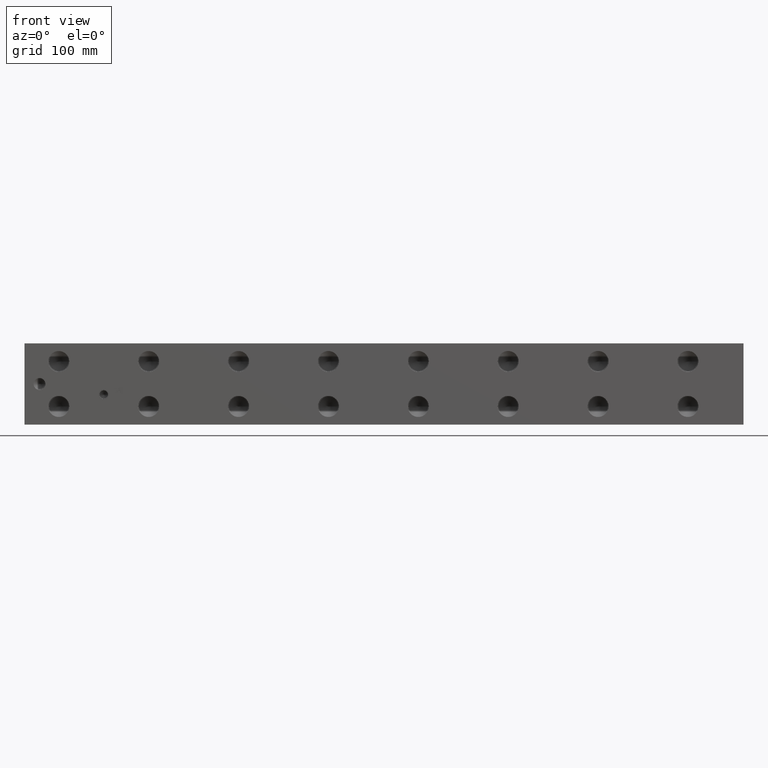
[diagram: clean part render]
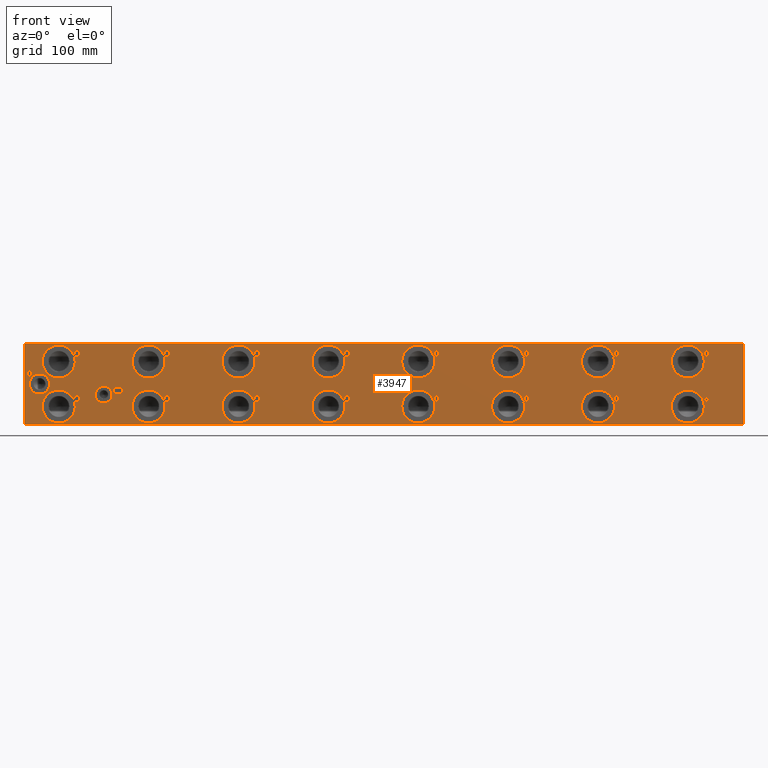
[diagram: same view with one face highlighted and labeled with its STEP entity id]
A machine part, front view. The second image highlights one B-rep face of the part: STEP entity #3947.
In plain terms, the highlighted planar face has unit normal (0, -1, 0).
Its self-contained STEP definition (entity closure, byte-faithful):
#2637=CARTESIAN_POINT('',(1008.0848330638274,0.0,35.610799999999998));
#2638=VERTEX_POINT('',#2637);
#2645=CARTESIAN_POINT('',(1008.126,0.0,35.610799999999998));
#2646=VERTEX_POINT('',#2645);
#2647=CARTESIAN_POINT('',(1008.126,0.0,35.610799999999998));
#2648=DIRECTION('',(-1.0,0.0,0.0));
#2649=VECTOR('',#2648,0.041166936172544);
#2650=LINE('',#2647,#2649);
#2651=EDGE_CURVE('',#2646,#2638,#2650,.T.);
#2852=CARTESIAN_POINT('',(1008.126,0.0,35.732915382781314));
#2853=VERTEX_POINT('',#2852);
#2860=CARTESIAN_POINT('',(1008.0848330638274,0.0,35.610799999999983));
#2861=DIRECTION('',(0.31945116667475,0.0,0.947602739606709));
#2862=VECTOR('',#2861,0.128867697060478);
#2863=LINE('',#2860,#2862);
#2864=EDGE_CURVE('',#2638,#2853,#2863,.T.);
#2898=CARTESIAN_POINT('',(0.0,0.0,0.0));
#2899=DIRECTION('',(0.0,-1.0,0.0));
#2900=DIRECTION('',(1.0,0.0,0.0));
#2901=AXIS2_PLACEMENT_3D('',#2898,#2899,#2900);
#2902=PLANE('',#2901);
#2903=CARTESIAN_POINT('',(0.0,0.0,0.0));
#2904=VERTEX_POINT('',#2903);
#2905=CARTESIAN_POINT('',(1066.8000000000002,0.0,0.0));
#2906=VERTEX_POINT('',#2905);
#2907=CARTESIAN_POINT('',(0.0,0.0,0.0));
#2908=DIRECTION('',(1.0,0.0,0.0));
#2909=VECTOR('',#2908,1066.8000000000002);
#2910=LINE('',#2907,#2909);
#2911=EDGE_CURVE('',#2904,#2906,#2910,.T.);
#2912=ORIENTED_EDGE('',*,*,#2911,.T.);
#2913=CARTESIAN_POINT('',(1066.8000000000002,0.0,120.65000000000001));
#2914=VERTEX_POINT('',#2913);
#2915=CARTESIAN_POINT('',(1066.8000000000002,0.0,0.0));
#2916=DIRECTION('',(0.0,0.0,1.0));
#2917=VECTOR('',#2916,120.65000000000001);
#2918=LINE('',#2915,#2917);
#2919=EDGE_CURVE('',#2906,#2914,#2918,.T.);
#2920=ORIENTED_EDGE('',*,*,#2919,.T.);
#2921=CARTESIAN_POINT('',(0.0,0.0,120.65000000000001));
#2922=VERTEX_POINT('',#2921);
#2923=CARTESIAN_POINT('',(0.0,0.0,120.65000000000001));
#2924=DIRECTION('',(1.0,0.0,0.0));
#2925=VECTOR('',#2924,1066.8000000000002);
#2926=LINE('',#2923,#2925);
#2927=EDGE_CURVE('',#2922,#2914,#2926,.T.);
#2928=ORIENTED_EDGE('',*,*,#2927,.F.);
#2929=CARTESIAN_POINT('',(0.0,0.0,0.0));
#2930=DIRECTION('',(0.0,0.0,1.0));
#2931=VECTOR('',#2930,120.65000000000001);
#2932=LINE('',#2929,#2931);
#2933=EDGE_CURVE('',#2904,#2922,#2932,.T.);
#2934=ORIENTED_EDGE('',*,*,#2933,.F.);
#2935=EDGE_LOOP('',(#2912,#2920,#2928,#2934));
#2936=FACE_OUTER_BOUND('',#2935,.T.);
#2937=CARTESIAN_POINT('',(874.77599999999995,0.0,35.623500000000007));
#2938=VERTEX_POINT('',#2937);
#2939=CARTESIAN_POINT('',(874.7348330638273,0.0,35.623500000000007));
#2940=VERTEX_POINT('',#2939);
#2941=CARTESIAN_POINT('',(874.77599999999995,0.0,35.623500000000007));
#2942=DIRECTION('',(-1.0,0.0,0.0));
#2943=VECTOR('',#2942,0.041166936172658);
#2944=LINE('',#2941,#2943);
#2945=EDGE_CURVE('',#2938,#2940,#2944,.T.);
#2946=ORIENTED_EDGE('',*,*,#2945,.T.);
#2947=CARTESIAN_POINT('',(874.77599999999995,0.0,35.745615382781317));
#2948=VERTEX_POINT('',#2947);
#2949=CARTESIAN_POINT('',(874.7348330638273,0.0,35.623499999999979));
#2950=DIRECTION('',(0.319451166674683,0.0,0.947602739606732));
#2951=VECTOR('',#2950,0.128867697060505);
#2952=LINE('',#2949,#2951);
#2953=EDGE_CURVE('',#2940,#2948,#2952,.T.);
#2954=ORIENTED_EDGE('',*,*,#2953,.T.);
#2955=CARTESIAN_POINT('',(874.77599999999995,0.0,43.719749999999998));
#2956=VERTEX_POINT('',#2955);
#2957=CARTESIAN_POINT('',(874.77599999999995,0.0,35.745615382781317));
#2958=DIRECTION('',(0.0,0.0,1.0));
#2959=VECTOR('',#2958,7.974134617218681);
#2960=LINE('',#2957,#2959);
#2961=EDGE_CURVE('',#2948,#2956,#2960,.T.);
#2962=ORIENTED_EDGE('',*,*,#2961,.T.);
#2963=CARTESIAN_POINT('',(881.88800000000015,0.0,43.719749999999998));
#2964=VERTEX_POINT('',#2963);
#2965=CARTESIAN_POINT('',(874.77599999999995,0.0,43.719749999999998));
#2966=DIRECTION('',(1.0,0.0,0.0));
#2967=VECTOR('',#2966,7.112000000000194);
#2968=LINE('',#2965,#2967);
#2969=EDGE_CURVE('',#2956,#2964,#2968,.T.);
#2970=ORIENTED_EDGE('',*,*,#2969,.T.);
#2971=CARTESIAN_POINT('',(881.88800000000015,0.0,34.194749999999999));
#2972=VERTEX_POINT('',#2971);
#2973=CARTESIAN_POINT('',(881.88800000000015,0.0,43.719749999999998));
#2974=DIRECTION('',(0.0,0.0,-1.0));
#2975=VECTOR('',#2974,9.524999999999999);
#2976=LINE('',#2973,#2975);
#2977=EDGE_CURVE('',#2964,#2972,#2976,.T.);
#2978=ORIENTED_EDGE('',*,*,#2977,.T.);
#2979=CARTESIAN_POINT('',(874.77599999999995,0.0,34.194749999999999));
#2980=VERTEX_POINT('',#2979);
#2981=CARTESIAN_POINT('',(881.88800000000015,0.0,34.194749999999999));
#2982=DIRECTION('',(-1.0,0.0,0.0));
#2983=VECTOR('',#2982,7.112000000000194);
#2984=LINE('',#2981,#2983);
#2985=EDGE_CURVE('',#2972,#2980,#2984,.T.);
#2986=ORIENTED_EDGE('',*,*,#2985,.T.);
#2987=CARTESIAN_POINT('',(874.77599999999995,0.0,34.194749999999999));
#2988=DIRECTION('',(0.0,0.0,1.0));
#2989=VECTOR('',#2988,1.428750000000001);
#2990=LINE('',#2987,#2989);
#2991=EDGE_CURVE('',#2980,#2938,#2990,.T.);
#2992=ORIENTED_EDGE('',*,*,#2991,.T.);
#2993=EDGE_LOOP('',(#2946,#2954,#2962,#2970,#2978,#2986,#2992));
#2994=FACE_BOUND('',#2993,.T.);
#2995=CARTESIAN_POINT('',(608.07600000000002,0.0,35.623500000000007));
#2996=VERTEX_POINT('',#2995);
#2997=CARTESIAN_POINT('',(608.03483306382748,0.0,35.623500000000007));
#2998=VERTEX_POINT('',#2997);
#2999=CARTESIAN_POINT('',(608.07600000000002,0.0,35.623500000000007));
#3000=DIRECTION('',(-1.0,0.0,0.0));
#3001=VECTOR('',#3000,0.041166936172658);
#3002=LINE('',#2999,#3001);
#3003=EDGE_CURVE('',#2996,#2998,#3002,.T.);
#3004=ORIENTED_EDGE('',*,*,#3003,.T.);
#3005=CARTESIAN_POINT('',(608.07600000000002,0.0,35.745615382781317));
#3006=VERTEX_POINT('',#3005);
#3007=CARTESIAN_POINT('',(608.03483306382748,0.0,35.623499999999979));
#3008=DIRECTION('',(0.319451166673925,0.0,0.947602739606988));
#3009=VECTOR('',#3008,0.128867697060456);
#3010=LINE('',#3007,#3009);
#3011=EDGE_CURVE('',#2998,#3006,#3010,.T.);
#3012=ORIENTED_EDGE('',*,*,#3011,.T.);
#3013=CARTESIAN_POINT('',(608.07600000000002,0.0,43.719749999999998));
#3014=VERTEX_POINT('',#3013);
#3015=CARTESIAN_POINT('',(608.07600000000002,0.0,35.74561538278131));
#3016=DIRECTION('',(0.0,0.0,1.0));
#3017=VECTOR('',#3016,7.974134617218688);
#3018=LINE('',#3015,#3017);
#3019=EDGE_CURVE('',#3006,#3014,#3018,.T.);
#3020=ORIENTED_EDGE('',*,*,#3019,.T.);
#3021=CARTESIAN_POINT('',(615.18799999999999,0.0,43.719749999999998));
#3022=VERTEX_POINT('',#3021);
#3023=CARTESIAN_POINT('',(608.07600000000002,0.0,43.719749999999998));
#3024=DIRECTION('',(1.0,0.0,0.0));
#3025=VECTOR('',#3024,7.111999999999966);
#3026=LINE('',#3023,#3025);
#3027=EDGE_CURVE('',#3014,#3022,#3026,.T.);
#3028=ORIENTED_EDGE('',*,*,#3027,.T.);
#3029=CARTESIAN_POINT('',(615.18799999999999,0.0,34.194749999999999));
#3030=VERTEX_POINT('',#3029);
#3031=CARTESIAN_POINT('',(615.18799999999999,0.0,43.719749999999998));
#3032=DIRECTION('',(0.0,0.0,-1.0));
#3033=VECTOR('',#3032,9.524999999999999);
#3034=LINE('',#3031,#3033);
#3035=EDGE_CURVE('',#3022,#3030,#3034,.T.);
#3036=ORIENTED_EDGE('',*,*,#3035,.T.);
#3037=CARTESIAN_POINT('',(608.07600000000002,0.0,34.194749999999999));
#3038=VERTEX_POINT('',#3037);
#3039=CARTESIAN_POINT('',(615.18799999999999,0.0,34.194749999999999));
#3040=DIRECTION('',(-1.0,0.0,0.0));
#3041=VECTOR('',#3040,7.111999999999966);
#3042=LINE('',#3039,#3041);
#3043=EDGE_CURVE('',#3030,#3038,#3042,.T.);
#3044=ORIENTED_EDGE('',*,*,#3043,.T.);
#3045=CARTESIAN_POINT('',(608.07600000000002,0.0,34.194749999999999));
#3046=DIRECTION('',(0.0,0.0,1.0));
#3047=VECTOR('',#3046,1.428750000000001);
#3048=LINE('',#3045,#3047);
#3049=EDGE_CURVE('',#3038,#2996,#3048,.T.);
#3050=ORIENTED_EDGE('',*,*,#3049,.T.);
#3051=EDGE_LOOP('',(#3004,#3012,#3020,#3028,#3036,#3044,#3050));
#3052=FACE_BOUND('',#3051,.T.);
#3053=CARTESIAN_POINT('',(341.37599999999998,0.0,35.623500000000007));
#3054=VERTEX_POINT('',#3053);
#3055=CARTESIAN_POINT('',(341.33483306382738,0.0,35.623500000000007));
#3056=VERTEX_POINT('',#3055);
#3057=CARTESIAN_POINT('',(341.37599999999998,0.0,35.623500000000007));
#3058=DIRECTION('',(-1.0,0.0,0.0));
#3059=VECTOR('',#3058,0.041166936172601);
#3060=LINE('',#3057,#3059);
#3061=EDGE_CURVE('',#3054,#3056,#3060,.T.);
#3062=ORIENTED_EDGE('',*,*,#3061,.T.);
#3063=CARTESIAN_POINT('',(341.37599999999998,0.0,35.745615382781317));
#3064=VERTEX_POINT('',#3063);
#3065=CARTESIAN_POINT('',(341.33483306382738,0.0,35.623499999999993));
#3066=DIRECTION('',(0.319451166674387,0.0,0.947602739606832));
#3067=VECTOR('',#3066,0.128867697060447);
#3068=LINE('',#3065,#3067);
#3069=EDGE_CURVE('',#3056,#3064,#3068,.T.);
#3070=ORIENTED_EDGE('',*,*,#3069,.T.);
#3071=CARTESIAN_POINT('',(341.37599999999998,0.0,43.719749999999998));
#3072=VERTEX_POINT('',#3071);
#3073=CARTESIAN_POINT('',(341.37599999999998,0.0,35.74561538278131));
#3074=DIRECTION('',(0.0,0.0,1.0));
#3075=VECTOR('',#3074,7.974134617218688);
#3076=LINE('',#3073,#3075);
#3077=EDGE_CURVE('',#3064,#3072,#3076,.T.);
#3078=ORIENTED_EDGE('',*,*,#3077,.T.);
#3079=CARTESIAN_POINT('',(348.48800000000006,0.0,43.719749999999998));
#3080=VERTEX_POINT('',#3079);
#3081=CARTESIAN_POINT('',(341.37599999999998,0.0,43.719749999999998));
#3082=DIRECTION('',(1.0,0.0,0.0));
#3083=VECTOR('',#3082,7.11200000000008);
#3084=LINE('',#3081,#3083);
#3085=EDGE_CURVE('',#3072,#3080,#3084,.T.);
#3086=ORIENTED_EDGE('',*,*,#3085,.T.);
#3087=CARTESIAN_POINT('',(348.48800000000006,0.0,34.194749999999999));
#3088=VERTEX_POINT('',#3087);
#3089=CARTESIAN_POINT('',(348.48800000000006,0.0,43.719749999999998));
#3090=DIRECTION('',(0.0,0.0,-1.0));
#3091=VECTOR('',#3090,9.524999999999999);
#3092=LINE('',#3089,#3091);
#3093=EDGE_CURVE('',#3080,#3088,#3092,.T.);
#3094=ORIENTED_EDGE('',*,*,#3093,.T.);
#3095=CARTESIAN_POINT('',(341.37599999999998,0.0,34.194749999999999));
#3096=VERTEX_POINT('',#3095);
#3097=CARTESIAN_POINT('',(348.48800000000006,0.0,34.194749999999999));
#3098=DIRECTION('',(-1.0,0.0,0.0));
#3099=VECTOR('',#3098,7.11200000000008);
#3100=LINE('',#3097,#3099);
#3101=EDGE_CURVE('',#3088,#3096,#3100,.T.);
#3102=ORIENTED_EDGE('',*,*,#3101,.T.);
#3103=CARTESIAN_POINT('',(341.37599999999998,0.0,34.194749999999999));
#3104=DIRECTION('',(0.0,0.0,1.0));
#3105=VECTOR('',#3104,1.428750000000001);
#3106=LINE('',#3103,#3105);
#3107=EDGE_CURVE('',#3096,#3054,#3106,.T.);
#3108=ORIENTED_EDGE('',*,*,#3107,.T.);
#3109=EDGE_LOOP('',(#3062,#3070,#3078,#3086,#3094,#3102,#3108));
#3110=FACE_BOUND('',#3109,.T.);
#3111=CARTESIAN_POINT('',(74.676000000000016,0.0,35.623500000000007));
#3112=VERTEX_POINT('',#3111);
#3113=CARTESIAN_POINT('',(74.634833063827358,0.0,35.623500000000007));
#3114=VERTEX_POINT('',#3113);
#3115=CARTESIAN_POINT('',(74.676000000000016,0.0,35.623500000000007));
#3116=DIRECTION('',(-1.0,0.0,0.0));
#3117=VECTOR('',#3116,0.041166936172658);
#3118=LINE('',#3115,#3117);
#3119=EDGE_CURVE('',#3112,#3114,#3118,.T.);
#3120=ORIENTED_EDGE('',*,*,#3119,.T.);
#3121=CARTESIAN_POINT('',(74.676000000000016,0.0,35.745615382781395));
#3122=VERTEX_POINT('',#3121);
#3123=CARTESIAN_POINT('',(74.634833063827358,0.0,35.623500000000007));
#3124=DIRECTION('',(0.319451166674583,0.0,0.947602739606766));
#3125=VECTOR('',#3124,0.128867697060546);
#3126=LINE('',#3123,#3125);
#3127=EDGE_CURVE('',#3114,#3122,#3126,.T.);
#3128=ORIENTED_EDGE('',*,*,#3127,.T.);
#3129=CARTESIAN_POINT('',(74.676000000000016,0.0,43.719749999999998));
#3130=VERTEX_POINT('',#3129);
#3131=CARTESIAN_POINT('',(74.676000000000016,0.0,35.745615382781395));
#3132=DIRECTION('',(0.0,0.0,1.0));
#3133=VECTOR('',#3132,7.974134617218603);
#3134=LINE('',#3131,#3133);
#3135=EDGE_CURVE('',#3122,#3130,#3134,.T.);
#3136=ORIENTED_EDGE('',*,*,#3135,.T.);
#3137=CARTESIAN_POINT('',(81.788000000000011,0.0,43.719749999999998));
#3138=VERTEX_POINT('',#3137);
#3139=CARTESIAN_POINT('',(74.676000000000016,0.0,43.719749999999998));
#3140=DIRECTION('',(1.0,0.0,0.0));
#3141=VECTOR('',#3140,7.111999999999995);
#3142=LINE('',#3139,#3141);
#3143=EDGE_CURVE('',#3130,#3138,#3142,.T.);
#3144=ORIENTED_EDGE('',*,*,#3143,.T.);
#3145=CARTESIAN_POINT('',(81.788000000000011,0.0,34.194749999999999));
#3146=VERTEX_POINT('',#3145);
#3147=CARTESIAN_POINT('',(81.788000000000011,0.0,43.719749999999998));
#3148=DIRECTION('',(0.0,0.0,-1.0));
#3149=VECTOR('',#3148,9.524999999999999);
#3150=LINE('',#3147,#3149);
#3151=EDGE_CURVE('',#3138,#3146,#3150,.T.);
#3152=ORIENTED_EDGE('',*,*,#3151,.T.);
#3153=CARTESIAN_POINT('',(74.676000000000016,0.0,34.194749999999999));
#3154=VERTEX_POINT('',#3153);
#3155=CARTESIAN_POINT('',(81.788000000000011,0.0,34.194749999999999));
#3156=DIRECTION('',(-1.0,0.0,0.0));
#3157=VECTOR('',#3156,7.111999999999995);
#3158=LINE('',#3155,#3157);
#3159=EDGE_CURVE('',#3146,#3154,#3158,.T.);
#3160=ORIENTED_EDGE('',*,*,#3159,.T.);
#3161=CARTESIAN_POINT('',(74.676000000000016,0.0,34.194749999999999));
#3162=DIRECTION('',(0.0,0.0,1.0));
#3163=VECTOR('',#3162,1.428750000000001);
#3164=LINE('',#3161,#3163);
#3165=EDGE_CURVE('',#3154,#3112,#3164,.T.);
#3166=ORIENTED_EDGE('',*,*,#3165,.T.);
#3167=EDGE_LOOP('',(#3120,#3128,#3136,#3144,#3152,#3160,#3166));
#3168=FACE_BOUND('',#3167,.T.);
#3169=CARTESIAN_POINT('',(215.13800000000003,0.0,110.39475000000002));
#3170=VERTEX_POINT('',#3169);
#3171=CARTESIAN_POINT('',(215.13800000000003,0.0,100.86975000000001));
#3172=VERTEX_POINT('',#3171);
#3173=CARTESIAN_POINT('',(215.13800000000003,0.0,110.39475000000002));
#3174=DIRECTION('',(0.0,0.0,-1.0));
#3175=VECTOR('',#3174,9.525000000000006);
#3176=LINE('',#3173,#3175);
#3177=EDGE_CURVE('',#3170,#3172,#3176,.T.);
#3178=ORIENTED_EDGE('',*,*,#3177,.T.);
#3179=CARTESIAN_POINT('',(208.02600000000001,0.0,100.86975000000001));
#3180=VERTEX_POINT('',#3179);
#3181=CARTESIAN_POINT('',(215.13800000000003,0.0,100.86975000000001));
#3182=DIRECTION('',(-1.0,0.0,0.0));
#3183=VECTOR('',#3182,7.112000000000023);
#3184=LINE('',#3181,#3183);
#3185=EDGE_CURVE('',#3172,#3180,#3184,.T.);
#3186=ORIENTED_EDGE('',*,*,#3185,.T.);
#3187=CARTESIAN_POINT('',(208.02600000000001,0.0,110.39475000000002));
#3188=VERTEX_POINT('',#3187);
#3189=CARTESIAN_POINT('',(208.02600000000001,0.0,100.86975000000001));
#3190=DIRECTION('',(0.0,0.0,1.0));
#3191=VECTOR('',#3190,9.525000000000006);
#3192=LINE('',#3189,#3191);
#3193=EDGE_CURVE('',#3180,#3188,#3192,.T.);
#3194=ORIENTED_EDGE('',*,*,#3193,.T.);
#3195=CARTESIAN_POINT('',(208.02600000000001,0.0,110.39475000000002));
#3196=DIRECTION('',(1.0,0.0,0.0));
#3197=VECTOR('',#3196,7.112000000000023);
#3198=LINE('',#3195,#3197);
#3199=EDGE_CURVE('',#3188,#3170,#3198,.T.);
#3200=ORIENTED_EDGE('',*,*,#3199,.T.);
#3201=EDGE_LOOP('',(#3178,#3186,#3194,#3200));
#3202=FACE_BOUND('',#3201,.T.);
#3203=CARTESIAN_POINT('',(81.788000000000011,0.0,110.39475000000002));
#3204=VERTEX_POINT('',#3203);
#3205=CARTESIAN_POINT('',(81.788000000000011,0.0,100.86975000000001));
#3206=VERTEX_POINT('',#3205);
#3207=CARTESIAN_POINT('',(81.788000000000011,0.0,110.39475000000002));
#3208=DIRECTION('',(0.0,0.0,-1.0));
#3209=VECTOR('',#3208,9.525000000000006);
#3210=LINE('',#3207,#3209);
#3211=EDGE_CURVE('',#3204,#3206,#3210,.T.);
#3212=ORIENTED_EDGE('',*,*,#3211,.T.);
#3213=CARTESIAN_POINT('',(74.676000000000016,0.0,100.86975000000001));
#3214=VERTEX_POINT('',#3213);
#3215=CARTESIAN_POINT('',(81.788000000000011,0.0,100.86975000000001));
#3216=DIRECTION('',(-1.0,0.0,0.0));
#3217=VECTOR('',#3216,7.111999999999995);
#3218=LINE('',#3215,#3217);
#3219=EDGE_CURVE('',#3206,#3214,#3218,.T.);
#3220=ORIENTED_EDGE('',*,*,#3219,.T.);
#3221=CARTESIAN_POINT('',(74.676000000000016,0.0,110.39475000000002));
#3222=VERTEX_POINT('',#3221);
#3223=CARTESIAN_POINT('',(74.676000000000016,0.0,100.86975000000001));
#3224=DIRECTION('',(0.0,0.0,1.0));
#3225=VECTOR('',#3224,9.525000000000006);
#3226=LINE('',#3223,#3225);
#3227=EDGE_CURVE('',#3214,#3222,#3226,.T.);
#3228=ORIENTED_EDGE('',*,*,#3227,.T.);
#3229=CARTESIAN_POINT('',(74.676000000000016,0.0,110.39475000000002));
#3230=DIRECTION('',(1.0,0.0,0.0));
#3231=VECTOR('',#3230,7.111999999999995);
#3232=LINE('',#3229,#3231);
#3233=EDGE_CURVE('',#3222,#3204,#3232,.T.);
#3234=ORIENTED_EDGE('',*,*,#3233,.T.);
#3235=EDGE_LOOP('',(#3212,#3220,#3228,#3234));
#3236=FACE_BOUND('',#3235,.T.);
#3237=CARTESIAN_POINT('',(348.48800000000006,0.0,110.39475000000002));
#3238=VERTEX_POINT('',#3237);
#3239=CARTESIAN_POINT('',(348.48800000000006,0.0,100.86975000000001));
#3240=VERTEX_POINT('',#3239);
#3241=CARTESIAN_POINT('',(348.48800000000006,0.0,110.39475000000002));
#3242=DIRECTION('',(0.0,0.0,-1.0));
#3243=VECTOR('',#3242,9.525000000000006);
#3244=LINE('',#3241,#3243);
#3245=EDGE_CURVE('',#3238,#3240,#3244,.T.);
#3246=ORIENTED_EDGE('',*,*,#3245,.T.);
#3247=CARTESIAN_POINT('',(341.37599999999998,0.0,100.86975000000001));
#3248=VERTEX_POINT('',#3247);
#3249=CARTESIAN_POINT('',(348.48800000000006,0.0,100.86975000000001));
#3250=DIRECTION('',(-1.0,0.0,0.0));
#3251=VECTOR('',#3250,7.11200000000008);
#3252=LINE('',#3249,#3251);
#3253=EDGE_CURVE('',#3240,#3248,#3252,.T.);
#3254=ORIENTED_EDGE('',*,*,#3253,.T.);
#3255=CARTESIAN_POINT('',(341.37599999999998,0.0,110.39475000000002));
#3256=VERTEX_POINT('',#3255);
#3257=CARTESIAN_POINT('',(341.37599999999998,0.0,100.86975000000001));
#3258=DIRECTION('',(0.0,0.0,1.0));
#3259=VECTOR('',#3258,9.525000000000006);
#3260=LINE('',#3257,#3259);
#3261=EDGE_CURVE('',#3248,#3256,#3260,.T.);
#3262=ORIENTED_EDGE('',*,*,#3261,.T.);
#3263=CARTESIAN_POINT('',(341.37599999999998,0.0,110.39475000000002));
#3264=DIRECTION('',(1.0,0.0,0.0));
#3265=VECTOR('',#3264,7.11200000000008);
#3266=LINE('',#3263,#3265);
#3267=EDGE_CURVE('',#3256,#3238,#3266,.T.);
#3268=ORIENTED_EDGE('',*,*,#3267,.T.);
#3269=EDGE_LOOP('',(#3246,#3254,#3262,#3268));
#3270=FACE_BOUND('',#3269,.T.);
#3271=CARTESIAN_POINT('',(481.83800000000008,0.0,110.42015000000001));
#3272=VERTEX_POINT('',#3271);
#3273=CARTESIAN_POINT('',(481.83800000000008,0.0,100.89515));
#3274=VERTEX_POINT('',#3273);
#3275=CARTESIAN_POINT('',(481.83800000000008,0.0,110.42015000000001));
#3276=DIRECTION('',(0.0,0.0,-1.0));
#3277=VECTOR('',#3276,9.525000000000006);
#3278=LINE('',#3275,#3277);
#3279=EDGE_CURVE('',#3272,#3274,#3278,.T.);
#3280=ORIENTED_EDGE('',*,*,#3279,.T.);
#3281=CARTESIAN_POINT('',(474.726,0.0,100.89515));
#3282=VERTEX_POINT('',#3281);
#3283=CARTESIAN_POINT('',(481.83800000000008,0.0,100.89515));
#3284=DIRECTION('',(-1.0,0.0,0.0));
#3285=VECTOR('',#3284,7.11200000000008);
#3286=LINE('',#3283,#3285);
#3287=EDGE_CURVE('',#3274,#3282,#3286,.T.);
#3288=ORIENTED_EDGE('',*,*,#3287,.T.);
#3289=CARTESIAN_POINT('',(474.726,0.0,110.42015000000001));
#3290=VERTEX_POINT('',#3289);
#3291=CARTESIAN_POINT('',(474.726,0.0,100.89515));
#3292=DIRECTION('',(0.0,0.0,1.0));
#3293=VECTOR('',#3292,9.525000000000006);
#3294=LINE('',#3291,#3293);
#3295=EDGE_CURVE('',#3282,#3290,#3294,.T.);
#3296=ORIENTED_EDGE('',*,*,#3295,.T.);
#3297=CARTESIAN_POINT('',(474.726,0.0,110.42015000000001));
#3298=DIRECTION('',(1.0,0.0,0.0));
#3299=VECTOR('',#3298,7.11200000000008);
#3300=LINE('',#3297,#3299);
#3301=EDGE_CURVE('',#3290,#3272,#3300,.T.);
#3302=ORIENTED_EDGE('',*,*,#3301,.T.);
#3303=EDGE_LOOP('',(#3280,#3288,#3296,#3302));
#3304=FACE_BOUND('',#3303,.T.);
#3305=CARTESIAN_POINT('',(615.18799999999999,0.0,110.44555000000001));
#3306=VERTEX_POINT('',#3305);
#3307=CARTESIAN_POINT('',(615.18799999999999,0.0,100.92055000000002));
#3308=VERTEX_POINT('',#3307);
#3309=CARTESIAN_POINT('',(615.18799999999999,0.0,110.44555000000001));
#3310=DIRECTION('',(0.0,0.0,-1.0));
#3311=VECTOR('',#3310,9.524999999999992);
#3312=LINE('',#3309,#3311);
#3313=EDGE_CURVE('',#3306,#3308,#3312,.T.);
#3314=ORIENTED_EDGE('',*,*,#3313,.T.);
#3315=CARTESIAN_POINT('',(608.07600000000002,0.0,100.92055000000002));
#3316=VERTEX_POINT('',#3315);
#3317=CARTESIAN_POINT('',(615.18799999999999,0.0,100.92055000000002));
#3318=DIRECTION('',(-1.0,0.0,0.0));
#3319=VECTOR('',#3318,7.111999999999966);
#3320=LINE('',#3317,#3319);
#3321=EDGE_CURVE('',#3308,#3316,#3320,.T.);
#3322=ORIENTED_EDGE('',*,*,#3321,.T.);
#3323=CARTESIAN_POINT('',(608.07600000000002,0.0,110.44555000000001));
#3324=VERTEX_POINT('',#3323);
#3325=CARTESIAN_POINT('',(608.07600000000002,0.0,100.92055000000002));
#3326=DIRECTION('',(0.0,0.0,1.0));
#3327=VECTOR('',#3326,9.524999999999992);
#3328=LINE('',#3325,#3327);
#3329=EDGE_CURVE('',#3316,#3324,#3328,.T.);
#3330=ORIENTED_EDGE('',*,*,#3329,.T.);
#3331=CARTESIAN_POINT('',(608.07600000000002,0.0,110.44555000000001));
#3332=DIRECTION('',(1.0,0.0,0.0));
#3333=VECTOR('',#3332,7.111999999999966);
#3334=LINE('',#3331,#3333);
#3335=EDGE_CURVE('',#3324,#3306,#3334,.T.);
#3336=ORIENTED_EDGE('',*,*,#3335,.T.);
#3337=EDGE_LOOP('',(#3314,#3322,#3330,#3336));
#3338=FACE_BOUND('',#3337,.T.);
#3339=CARTESIAN_POINT('',(748.53800000000001,0.0,110.47095));
#3340=VERTEX_POINT('',#3339);
#3341=CARTESIAN_POINT('',(748.53800000000001,0.0,100.94595));
#3342=VERTEX_POINT('',#3341);
#3343=CARTESIAN_POINT('',(748.53800000000001,0.0,110.47095));
#3344=DIRECTION('',(0.0,0.0,-1.0));
#3345=VECTOR('',#3344,9.525000000000006);
#3346=LINE('',#3343,#3345);
#3347=EDGE_CURVE('',#3340,#3342,#3346,.T.);
#3348=ORIENTED_EDGE('',*,*,#3347,.T.);
#3349=CARTESIAN_POINT('',(741.42600000000004,0.0,100.94595));
#3350=VERTEX_POINT('',#3349);
#3351=CARTESIAN_POINT('',(748.53800000000001,0.0,100.94595));
#3352=DIRECTION('',(-1.0,0.0,0.0));
#3353=VECTOR('',#3352,7.11200000000008);
#3354=LINE('',#3351,#3353);
#3355=EDGE_CURVE('',#3342,#3350,#3354,.T.);
#3356=ORIENTED_EDGE('',*,*,#3355,.T.);
#3357=CARTESIAN_POINT('',(741.42600000000004,0.0,110.47095));
#3358=VERTEX_POINT('',#3357);
#3359=CARTESIAN_POINT('',(741.42600000000004,0.0,100.94595));
#3360=DIRECTION('',(0.0,0.0,1.0));
#3361=VECTOR('',#3360,9.525000000000006);
#3362=LINE('',#3359,#3361);
#3363=EDGE_CURVE('',#3350,#3358,#3362,.T.);
#3364=ORIENTED_EDGE('',*,*,#3363,.T.);
#3365=CARTESIAN_POINT('',(741.42600000000004,0.0,110.47095));
#3366=DIRECTION('',(1.0,0.0,0.0));
#3367=VECTOR('',#3366,7.111999999999966);
#3368=LINE('',#3365,#3367);
#3369=EDGE_CURVE('',#3358,#3340,#3368,.T.);
#3370=ORIENTED_EDGE('',*,*,#3369,.T.);
#3371=EDGE_LOOP('',(#3348,#3356,#3364,#3370));
#3372=FACE_BOUND('',#3371,.T.);
#3373=CARTESIAN_POINT('',(1015.2380000000001,0.0,110.50905));
#3374=VERTEX_POINT('',#3373);
#3375=CARTESIAN_POINT('',(1015.2380000000001,0.0,100.98405));
#3376=VERTEX_POINT('',#3375);
#3377=CARTESIAN_POINT('',(1015.2380000000001,0.0,110.50905));
#3378=DIRECTION('',(0.0,0.0,-1.0));
#3379=VECTOR('',#3378,9.525000000000006);
#3380=LINE('',#3377,#3379);
#3381=EDGE_CURVE('',#3374,#3376,#3380,.T.);
#3382=ORIENTED_EDGE('',*,*,#3381,.T.);
#3383=CARTESIAN_POINT('',(1008.126,0.0,100.98405));
#3384=VERTEX_POINT('',#3383);
#3385=CARTESIAN_POINT('',(1015.2380000000001,0.0,100.98405));
#3386=DIRECTION('',(-1.0,0.0,0.0));
#3387=VECTOR('',#3386,7.11200000000008);
#3388=LINE('',#3385,#3387);
#3389=EDGE_CURVE('',#3376,#3384,#3388,.T.);
#3390=ORIENTED_EDGE('',*,*,#3389,.T.);
#3391=CARTESIAN_POINT('',(1008.126,0.0,110.50905));
#3392=VERTEX_POINT('',#3391);
#3393=CARTESIAN_POINT('',(1008.126,0.0,100.98405));
#3394=DIRECTION('',(0.0,0.0,1.0));
#3395=VECTOR('',#3394,9.525000000000006);
#3396=LINE('',#3393,#3395);
#3397=EDGE_CURVE('',#3384,#3392,#3396,.T.);
#3398=ORIENTED_EDGE('',*,*,#3397,.T.);
#3399=CARTESIAN_POINT('',(1008.126,0.0,110.50905));
#3400=DIRECTION('',(1.0,0.0,0.0));
#3401=VECTOR('',#3400,7.11200000000008);
#3402=LINE('',#3399,#3401);
#3403=EDGE_CURVE('',#3392,#3374,#3402,.T.);
#3404=ORIENTED_EDGE('',*,*,#3403,.T.);
#3405=EDGE_LOOP('',(#3382,#3390,#3398,#3404));
#3406=FACE_BOUND('',#3405,.T.);
#3407=CARTESIAN_POINT('',(881.88800000000015,0.0,110.49635000000002));
#3408=VERTEX_POINT('',#3407);
#3409=CARTESIAN_POINT('',(881.88800000000015,0.0,100.97135000000002));
#3410=VERTEX_POINT('',#3409);
#3411=CARTESIAN_POINT('',(881.88800000000015,0.0,110.49635000000002));
#3412=DIRECTION('',(0.0,0.0,-1.0));
#3413=VECTOR('',#3412,9.525000000000006);
#3414=LINE('',#3411,#3413);
#3415=EDGE_CURVE('',#3408,#3410,#3414,.T.);
#3416=ORIENTED_EDGE('',*,*,#3415,.T.);
#3417=CARTESIAN_POINT('',(874.77599999999995,0.0,100.97135000000002));
#3418=VERTEX_POINT('',#3417);
#3419=CARTESIAN_POINT('',(881.88800000000015,0.0,100.97135000000002));
#3420=DIRECTION('',(-1.0,0.0,0.0));
#3421=VECTOR('',#3420,7.112000000000194);
#3422=LINE('',#3419,#3421);
#3423=EDGE_CURVE('',#3410,#3418,#3422,.T.);
#3424=ORIENTED_EDGE('',*,*,#3423,.T.);
#3425=CARTESIAN_POINT('',(874.77599999999995,0.0,110.49635000000002));
#3426=VERTEX_POINT('',#3425);
#3427=CARTESIAN_POINT('',(874.77599999999995,0.0,100.97135000000002));
#3428=DIRECTION('',(0.0,0.0,1.0));
#3429=VECTOR('',#3428,9.525000000000006);
#3430=LINE('',#3427,#3429);
#3431=EDGE_CURVE('',#3418,#3426,#3430,.T.);
#3432=ORIENTED_EDGE('',*,*,#3431,.T.);
#3433=CARTESIAN_POINT('',(874.77599999999995,0.0,110.49635000000002));
#3434=DIRECTION('',(1.0,0.0,0.0));
#3435=VECTOR('',#3434,7.112000000000194);
#3436=LINE('',#3433,#3435);
#3437=EDGE_CURVE('',#3426,#3408,#3436,.T.);
#3438=ORIENTED_EDGE('',*,*,#3437,.T.);
#3439=EDGE_LOOP('',(#3416,#3424,#3432,#3438));
#3440=FACE_BOUND('',#3439,.T.);
#3441=CARTESIAN_POINT('',(3.89068719680576,0.0,79.374999904632574));
#3442=VERTEX_POINT('',#3441);
#3443=CARTESIAN_POINT('',(3.937,0.0,79.374999904632574));
#3444=VERTEX_POINT('',#3443);
#3445=CARTESIAN_POINT('',(3.89068719680576,0.0,79.374999904632574));
#3446=DIRECTION('',(1.0,0.0,0.0));
#3447=VECTOR('',#3446,0.046312803194241);
#3448=LINE('',#3445,#3447);
#3449=EDGE_CURVE('',#3442,#3444,#3448,.T.);
#3450=ORIENTED_EDGE('',*,*,#3449,.T.);
#3451=CARTESIAN_POINT('',(3.937,0.0,81.121250000000003));
#3452=VERTEX_POINT('',#3451);
#3453=CARTESIAN_POINT('',(3.937,0.0,79.374999904632574));
#3454=DIRECTION('',(0.0,0.0,1.0));
#3455=VECTOR('',#3454,1.746250095367429);
#3456=LINE('',#3453,#3455);
#3457=EDGE_CURVE('',#3444,#3452,#3456,.T.);
#3458=ORIENTED_EDGE('',*,*,#3457,.T.);
#3459=CARTESIAN_POINT('',(11.048999999999999,0.0,81.121250000000003));
#3460=VERTEX_POINT('',#3459);
#3461=CARTESIAN_POINT('',(3.937,0.0,81.121250000000003));
#3462=DIRECTION('',(1.0,0.0,0.0));
#3463=VECTOR('',#3462,7.112);
#3464=LINE('',#3461,#3463);
#3465=EDGE_CURVE('',#3452,#3460,#3464,.T.);
#3466=ORIENTED_EDGE('',*,*,#3465,.T.);
#3467=CARTESIAN_POINT('',(11.048999999999999,0.0,71.596249999999998));
#3468=VERTEX_POINT('',#3467);
#3469=CARTESIAN_POINT('',(11.048999999999999,0.0,81.121250000000003));
#3470=DIRECTION('',(0.0,0.0,-1.0));
#3471=VECTOR('',#3470,9.525000000000006);
#3472=LINE('',#3469,#3471);
#3473=EDGE_CURVE('',#3460,#3468,#3472,.T.);
#3474=ORIENTED_EDGE('',*,*,#3473,.T.);
#3475=CARTESIAN_POINT('',(3.937,0.0,71.596249999999998));
#3476=VERTEX_POINT('',#3475);
#3477=CARTESIAN_POINT('',(11.048999999999999,0.0,71.596249999999998));
#3478=DIRECTION('',(-1.0,0.0,0.0));
#3479=VECTOR('',#3478,7.112);
#3480=LINE('',#3477,#3479);
#3481=EDGE_CURVE('',#3468,#3476,#3480,.T.);
#3482=ORIENTED_EDGE('',*,*,#3481,.T.);
#3483=CARTESIAN_POINT('',(3.937,0.0,79.296701280527216));
#3484=VERTEX_POINT('',#3483);
#3485=CARTESIAN_POINT('',(3.937,0.0,71.596249999999998));
#3486=DIRECTION('',(0.0,0.0,1.0));
#3487=VECTOR('',#3486,7.700451280527204);
#3488=LINE('',#3485,#3487);
#3489=EDGE_CURVE('',#3476,#3484,#3488,.T.);
#3490=ORIENTED_EDGE('',*,*,#3489,.T.);
#3491=CARTESIAN_POINT('',(3.936999999999998,0.0,79.296701280527202));
#3492=DIRECTION('',(-0.509099449897531,0.0,0.860707703064189));
#3493=VECTOR('',#3492,0.090970051536221);
#3494=LINE('',#3491,#3493);
#3495=EDGE_CURVE('',#3484,#3442,#3494,.T.);
#3496=ORIENTED_EDGE('',*,*,#3495,.T.);
#3497=EDGE_LOOP('',(#3450,#3458,#3466,#3474,#3482,#3490,#3496));
#3498=FACE_BOUND('',#3497,.T.);
#3499=CARTESIAN_POINT('',(145.97380000000001,0.0,55.721249999999998));
#3500=VERTEX_POINT('',#3499);
#3501=CARTESIAN_POINT('',(145.97380000000001,0.0,46.196249999999999));
#3502=VERTEX_POINT('',#3501);
#3503=CARTESIAN_POINT('',(145.97380000000001,0.0,55.721249999999998));
#3504=DIRECTION('',(0.0,0.0,-1.0));
#3505=VECTOR('',#3504,9.524999999999999);
#3506=LINE('',#3503,#3505);
#3507=EDGE_CURVE('',#3500,#3502,#3506,.T.);
#3508=ORIENTED_EDGE('',*,*,#3507,.T.);
#3509=CARTESIAN_POINT('',(131.74979999999999,0.0,46.196249999999999));
#3510=VERTEX_POINT('',#3509);
#3511=CARTESIAN_POINT('',(145.97380000000001,0.0,46.196249999999999));
#3512=DIRECTION('',(-1.0,0.0,0.0));
#3513=VECTOR('',#3512,14.224000000000018);
#3514=LINE('',#3511,#3513);
#3515=EDGE_CURVE('',#3502,#3510,#3514,.T.);
#3516=ORIENTED_EDGE('',*,*,#3515,.T.);
#3517=CARTESIAN_POINT('',(131.74979999999999,0.0,55.721249999999998));
#3518=VERTEX_POINT('',#3517);
#3519=CARTESIAN_POINT('',(131.74979999999999,0.0,46.196249999999999));
#3520=DIRECTION('',(0.0,0.0,1.0));
#3521=VECTOR('',#3520,9.524999999999999);
#3522=LINE('',#3519,#3521);
#3523=EDGE_CURVE('',#3510,#3518,#3522,.T.);
#3524=ORIENTED_EDGE('',*,*,#3523,.T.);
#3525=CARTESIAN_POINT('',(131.74979999999999,0.0,55.721249999999998));
#3526=DIRECTION('',(1.0,0.0,0.0));
#3527=VECTOR('',#3526,14.224000000000018);
#3528=LINE('',#3525,#3527);
#3529=EDGE_CURVE('',#3518,#3500,#3528,.T.);
#3530=ORIENTED_EDGE('',*,*,#3529,.T.);
#3531=EDGE_LOOP('',(#3508,#3516,#3524,#3530));
#3532=FACE_BOUND('',#3531,.T.);
#3533=CARTESIAN_POINT('',(1008.7356000000001,0.0,26.974800000000002));
#3534=VERTEX_POINT('',#3533);
#3535=CARTESIAN_POINT('',(984.25000000000011,0.0,26.974800000000002));
#3536=DIRECTION('',(0.0,1.0,0.0));
#3537=DIRECTION('',(1.0,0.0,0.0));
#3538=AXIS2_PLACEMENT_3D('',#3535,#3536,#3537);
#3539=CIRCLE('',#3538,24.485600000000005);
#3540=EDGE_CURVE('',#3534,#3534,#3539,.T.);
#3541=ORIENTED_EDGE('',*,*,#3540,.T.);
#3542=EDGE_LOOP('',(#3541));
#3543=FACE_BOUND('',#3542,.T.);
#3544=CARTESIAN_POINT('',(875.38560000000007,0.0,26.987500000000004));
#3545=VERTEX_POINT('',#3544);
#3546=CARTESIAN_POINT('',(850.90000000000009,0.0,26.987500000000004));
#3547=DIRECTION('',(0.0,1.0,0.0));
#3548=DIRECTION('',(1.0,0.0,0.0));
#3549=AXIS2_PLACEMENT_3D('',#3546,#3547,#3548);
#3550=CIRCLE('',#3549,24.485600000000005);
#3551=EDGE_CURVE('',#3545,#3545,#3550,.T.);
#3552=ORIENTED_EDGE('',*,*,#3551,.T.);
#3553=EDGE_LOOP('',(#3552));
#3554=FACE_BOUND('',#3553,.T.);
#3555=CARTESIAN_POINT('',(742.03559999999993,0.0,26.987500000000004));
#3556=VERTEX_POINT('',#3555);
#3557=CARTESIAN_POINT('',(717.54999999999995,0.0,26.987500000000004));
#3558=DIRECTION('',(0.0,1.0,0.0));
#3559=DIRECTION('',(1.0,0.0,0.0));
#3560=AXIS2_PLACEMENT_3D('',#3557,#3558,#3559);
#3561=CIRCLE('',#3560,24.485600000000005);
#3562=EDGE_CURVE('',#3556,#3556,#3561,.T.);
#3563=ORIENTED_EDGE('',*,*,#3562,.T.);
#3564=EDGE_LOOP('',(#3563));
#3565=FACE_BOUND('',#3564,.T.);
#3566=CARTESIAN_POINT('',(608.68560000000014,0.0,26.987500000000004));
#3567=VERTEX_POINT('',#3566);
#3568=CARTESIAN_POINT('',(584.20000000000005,0.0,26.987500000000004));
#3569=DIRECTION('',(0.0,1.0,0.0));
#3570=DIRECTION('',(1.0,0.0,0.0));
#3571=AXIS2_PLACEMENT_3D('',#3568,#3569,#3570);
#3572=CIRCLE('',#3571,24.485600000000005);
#3573=EDGE_CURVE('',#3567,#3567,#3572,.T.);
#3574=ORIENTED_EDGE('',*,*,#3573,.T.);
#3575=EDGE_LOOP('',(#3574));
#3576=FACE_BOUND('',#3575,.T.);
#3577=CARTESIAN_POINT('',(475.33560000000011,0.0,26.987500000000004));
#3578=VERTEX_POINT('',#3577);
#3579=CARTESIAN_POINT('',(450.85000000000008,0.0,26.987500000000004));
#3580=DIRECTION('',(0.0,1.0,0.0));
#3581=DIRECTION('',(1.0,0.0,0.0));
#3582=AXIS2_PLACEMENT_3D('',#3579,#3580,#3581);
#3583=CIRCLE('',#3582,24.485600000000005);
#3584=EDGE_CURVE('',#3578,#3578,#3583,.T.);
#3585=ORIENTED_EDGE('',*,*,#3584,.T.);
#3586=EDGE_LOOP('',(#3585));
#3587=FACE_BOUND('',#3586,.T.);
#3588=CARTESIAN_POINT('',(341.98559999999998,0.0,26.987500000000004));
#3589=VERTEX_POINT('',#3588);
#3590=CARTESIAN_POINT('',(317.5,0.0,26.987500000000004));
#3591=DIRECTION('',(0.0,1.0,0.0));
#3592=DIRECTION('',(1.0,0.0,0.0));
#3593=AXIS2_PLACEMENT_3D('',#3590,#3591,#3592);
#3594=CIRCLE('',#3593,24.485600000000005);
#3595=EDGE_CURVE('',#3589,#3589,#3594,.T.);
#3596=ORIENTED_EDGE('',*,*,#3595,.T.);
#3597=EDGE_LOOP('',(#3596));
#3598=FACE_BOUND('',#3597,.T.);
#3599=CARTESIAN_POINT('',(208.63560000000004,0.0,26.987500000000004));
#3600=VERTEX_POINT('',#3599);
#3601=CARTESIAN_POINT('',(184.15000000000003,0.0,26.987500000000004));
#3602=DIRECTION('',(0.0,1.0,0.0));
#3603=DIRECTION('',(1.0,0.0,0.0));
#3604=AXIS2_PLACEMENT_3D('',#3601,#3602,#3603);
#3605=CIRCLE('',#3604,24.485600000000005);
#3606=EDGE_CURVE('',#3600,#3600,#3605,.T.);
#3607=ORIENTED_EDGE('',*,*,#3606,.T.);
#3608=EDGE_LOOP('',(#3607));
#3609=FACE_BOUND('',#3608,.T.);
#3610=CARTESIAN_POINT('',(75.285600000000002,0.0,26.987500000000004));
#3611=VERTEX_POINT('',#3610);
#3612=CARTESIAN_POINT('',(50.799999999999997,0.0,26.987500000000004));
#3613=DIRECTION('',(0.0,1.0,0.0));
#3614=DIRECTION('',(1.0,0.0,0.0));
#3615=AXIS2_PLACEMENT_3D('',#3612,#3613,#3614);
#3616=CIRCLE('',#3615,24.485600000000005);
#3617=EDGE_CURVE('',#3611,#3611,#3616,.T.);
#3618=ORIENTED_EDGE('',*,*,#3617,.T.);
#3619=EDGE_LOOP('',(#3618));
#3620=FACE_BOUND('',#3619,.T.);
#3621=CARTESIAN_POINT('',(208.63560000000004,0.0,93.662499999999994));
#3622=VERTEX_POINT('',#3621);
#3623=CARTESIAN_POINT('',(184.15000000000003,0.0,93.662499999999994));
#3624=DIRECTION('',(0.0,1.0,0.0));
#3625=DIRECTION('',(1.0,0.0,0.0));
#3626=AXIS2_PLACEMENT_3D('',#3623,#3624,#3625);
#3627=CIRCLE('',#3626,24.485600000000005);
#3628=EDGE_CURVE('',#3622,#3622,#3627,.T.);
#3629=ORIENTED_EDGE('',*,*,#3628,.T.);
#3630=EDGE_LOOP('',(#3629));
#3631=FACE_BOUND('',#3630,.T.);
#3632=CARTESIAN_POINT('',(75.285600000000002,0.0,93.662499999999994));
#3633=VERTEX_POINT('',#3632);
#3634=CARTESIAN_POINT('',(50.799999999999997,0.0,93.662499999999994));
#3635=DIRECTION('',(0.0,1.0,0.0));
#3636=DIRECTION('',(1.0,0.0,0.0));
#3637=AXIS2_PLACEMENT_3D('',#3634,#3635,#3636);
#3638=CIRCLE('',#3637,24.485600000000005);
#3639=EDGE_CURVE('',#3633,#3633,#3638,.T.);
#3640=ORIENTED_EDGE('',*,*,#3639,.T.);
#3641=EDGE_LOOP('',(#3640));
#3642=FACE_BOUND('',#3641,.T.);
#3643=CARTESIAN_POINT('',(341.98559999999998,0.0,93.662499999999994));
#3644=VERTEX_POINT('',#3643);
#3645=CARTESIAN_POINT('',(317.5,0.0,93.662499999999994));
#3646=DIRECTION('',(0.0,1.0,0.0));
#3647=DIRECTION('',(1.0,0.0,0.0));
#3648=AXIS2_PLACEMENT_3D('',#3645,#3646,#3647);
#3649=CIRCLE('',#3648,24.485600000000005);
#3650=EDGE_CURVE('',#3644,#3644,#3649,.T.);
#3651=ORIENTED_EDGE('',*,*,#3650,.T.);
#3652=EDGE_LOOP('',(#3651));
#3653=FACE_BOUND('',#3652,.T.);
#3654=CARTESIAN_POINT('',(475.33560000000011,0.0,93.687900000000013));
#3655=VERTEX_POINT('',#3654);
#3656=CARTESIAN_POINT('',(450.85000000000008,0.0,93.687900000000013));
#3657=DIRECTION('',(0.0,1.0,0.0));
#3658=DIRECTION('',(1.0,0.0,0.0));
#3659=AXIS2_PLACEMENT_3D('',#3656,#3657,#3658);
#3660=CIRCLE('',#3659,24.485600000000005);
#3661=EDGE_CURVE('',#3655,#3655,#3660,.T.);
#3662=ORIENTED_EDGE('',*,*,#3661,.T.);
#3663=EDGE_LOOP('',(#3662));
#3664=FACE_BOUND('',#3663,.T.);
#3665=CARTESIAN_POINT('',(608.68560000000014,0.0,93.713300000000004));
#3666=VERTEX_POINT('',#3665);
#3667=CARTESIAN_POINT('',(584.20000000000005,0.0,93.713300000000004));
#3668=DIRECTION('',(0.0,1.0,0.0));
#3669=DIRECTION('',(1.0,0.0,0.0));
#3670=AXIS2_PLACEMENT_3D('',#3667,#3668,#3669);
#3671=CIRCLE('',#3670,24.485600000000005);
#3672=EDGE_CURVE('',#3666,#3666,#3671,.T.);
#3673=ORIENTED_EDGE('',*,*,#3672,.T.);
#3674=EDGE_LOOP('',(#3673));
#3675=FACE_BOUND('',#3674,.T.);
#3676=CARTESIAN_POINT('',(742.03559999999993,0.0,93.738699999999994));
#3677=VERTEX_POINT('',#3676);
#3678=CARTESIAN_POINT('',(717.54999999999995,0.0,93.738699999999994));
#3679=DIRECTION('',(0.0,1.0,0.0));
#3680=DIRECTION('',(1.0,0.0,0.0));
#3681=AXIS2_PLACEMENT_3D('',#3678,#3679,#3680);
#3682=CIRCLE('',#3681,24.485600000000005);
#3683=EDGE_CURVE('',#3677,#3677,#3682,.T.);
#3684=ORIENTED_EDGE('',*,*,#3683,.T.);
#3685=EDGE_LOOP('',(#3684));
#3686=FACE_BOUND('',#3685,.T.);
#3687=CARTESIAN_POINT('',(1008.7356000000001,0.0,93.776799999999994));
#3688=VERTEX_POINT('',#3687);
#3689=CARTESIAN_POINT('',(984.25000000000011,0.0,93.776799999999994));
#3690=DIRECTION('',(0.0,1.0,0.0));
#3691=DIRECTION('',(1.0,0.0,0.0));
#3692=AXIS2_PLACEMENT_3D('',#3689,#3690,#3691);
#3693=CIRCLE('',#3692,24.485600000000005);
#3694=EDGE_CURVE('',#3688,#3688,#3693,.T.);
#3695=ORIENTED_EDGE('',*,*,#3694,.T.);
#3696=EDGE_LOOP('',(#3695));
#3697=FACE_BOUND('',#3696,.T.);
#3698=CARTESIAN_POINT('',(875.38560000000007,0.0,93.764099999999999));
#3699=VERTEX_POINT('',#3698);
#3700=CARTESIAN_POINT('',(850.90000000000009,0.0,93.764099999999999));
#3701=DIRECTION('',(0.0,1.0,0.0));
#3702=DIRECTION('',(1.0,0.0,0.0));
#3703=AXIS2_PLACEMENT_3D('',#3700,#3701,#3702);
#3704=CIRCLE('',#3703,24.485600000000005);
#3705=EDGE_CURVE('',#3699,#3699,#3704,.T.);
#3706=ORIENTED_EDGE('',*,*,#3705,.T.);
#3707=EDGE_LOOP('',(#3706));
#3708=FACE_BOUND('',#3707,.T.);
#3709=CARTESIAN_POINT('',(37.350700000000003,0.0,60.325000000000003));
#3710=VERTEX_POINT('',#3709);
#3711=CARTESIAN_POINT('',(22.225000000000001,0.0,60.325000000000003));
#3712=DIRECTION('',(0.0,1.0,0.0));
#3713=DIRECTION('',(1.0,0.0,0.0));
#3714=AXIS2_PLACEMENT_3D('',#3711,#3712,#3713);
#3715=CIRCLE('',#3714,15.125700000000002);
#3716=EDGE_CURVE('',#3710,#3710,#3715,.T.);
#3717=ORIENTED_EDGE('',*,*,#3716,.T.);
#3718=EDGE_LOOP('',(#3717));
#3719=FACE_BOUND('',#3718,.T.);
#3720=CARTESIAN_POINT('',(129.9845,0.0,44.450000000000003));
#3721=VERTEX_POINT('',#3720);
#3722=CARTESIAN_POINT('',(117.47500000000001,0.0,44.450000000000003));
#3723=DIRECTION('',(0.0,1.0,0.0));
#3724=DIRECTION('',(1.0,0.0,0.0));
#3725=AXIS2_PLACEMENT_3D('',#3722,#3723,#3724);
#3726=CIRCLE('',#3725,12.509499999999996);
#3727=EDGE_CURVE('',#3721,#3721,#3726,.T.);
#3728=ORIENTED_EDGE('',*,*,#3727,.T.);
#3729=EDGE_LOOP('',(#3728));
#3730=FACE_BOUND('',#3729,.T.);
#3731=CARTESIAN_POINT('',(208.02600000000001,0.0,35.623500000000007));
#3732=VERTEX_POINT('',#3731);
#3733=CARTESIAN_POINT('',(207.98483306382735,0.0,35.623500000000007));
#3734=VERTEX_POINT('',#3733);
#3735=CARTESIAN_POINT('',(208.02600000000001,0.0,35.623500000000007));
#3736=DIRECTION('',(-1.0,0.0,0.0));
#3737=VECTOR('',#3736,0.041166936172658);
#3738=LINE('',#3735,#3737);
#3739=EDGE_CURVE('',#3732,#3734,#3738,.T.);
#3740=ORIENTED_EDGE('',*,*,#3739,.T.);
#3741=CARTESIAN_POINT('',(208.02600000000001,0.0,35.745615382781416));
#3742=VERTEX_POINT('',#3741);
#3743=CARTESIAN_POINT('',(207.98483306382732,0.0,35.623500000000014));
#3744=DIRECTION('',(0.31945116667455,0.0,0.947602739606777));
#3745=VECTOR('',#3744,0.128867697060559);
#3746=LINE('',#3743,#3745);
#3747=EDGE_CURVE('',#3734,#3742,#3746,.T.);
#3748=ORIENTED_EDGE('',*,*,#3747,.T.);
#3749=CARTESIAN_POINT('',(208.02600000000001,0.0,43.719749999999998));
#3750=VERTEX_POINT('',#3749);
#3751=CARTESIAN_POINT('',(208.02600000000001,0.0,35.745615382781416));
#3752=DIRECTION('',(0.0,0.0,1.0));
#3753=VECTOR('',#3752,7.974134617218581);
#3754=LINE('',#3751,#3753);
#3755=EDGE_CURVE('',#3742,#3750,#3754,.T.);
#3756=ORIENTED_EDGE('',*,*,#3755,.T.);
#3757=CARTESIAN_POINT('',(215.13800000000003,0.0,43.719749999999998));
#3758=VERTEX_POINT('',#3757);
#3759=CARTESIAN_POINT('',(208.02600000000001,0.0,43.719749999999998));
#3760=DIRECTION('',(1.0,0.0,0.0));
#3761=VECTOR('',#3760,7.112000000000023);
#3762=LINE('',#3759,#3761);
#3763=EDGE_CURVE('',#3750,#3758,#3762,.T.);
#3764=ORIENTED_EDGE('',*,*,#3763,.T.);
#3765=CARTESIAN_POINT('',(215.13800000000003,0.0,34.194749999999999));
#3766=VERTEX_POINT('',#3765);
#3767=CARTESIAN_POINT('',(215.13800000000003,0.0,43.719749999999998));
#3768=DIRECTION('',(0.0,0.0,-1.0));
#3769=VECTOR('',#3768,9.524999999999999);
#3770=LINE('',#3767,#3769);
#3771=EDGE_CURVE('',#3758,#3766,#3770,.T.);
#3772=ORIENTED_EDGE('',*,*,#3771,.T.);
#3773=CARTESIAN_POINT('',(208.02600000000001,0.0,34.194749999999999));
#3774=VERTEX_POINT('',#3773);
#3775=CARTESIAN_POINT('',(215.13800000000003,0.0,34.194749999999999));
#3776=DIRECTION('',(-1.0,0.0,0.0));
#3777=VECTOR('',#3776,7.112000000000023);
#3778=LINE('',#3775,#3777);
#3779=EDGE_CURVE('',#3766,#3774,#3778,.T.);
#3780=ORIENTED_EDGE('',*,*,#3779,.T.);
#3781=CARTESIAN_POINT('',(208.02600000000001,0.0,34.194749999999999));
#3782=DIRECTION('',(0.0,0.0,1.0));
#3783=VECTOR('',#3782,1.428750000000001);
#3784=LINE('',#3781,#3783);
#3785=EDGE_CURVE('',#3774,#3732,#3784,.T.);
#3786=ORIENTED_EDGE('',*,*,#3785,.T.);
#3787=EDGE_LOOP('',(#3740,#3748,#3756,#3764,#3772,#3780,#3786));
#3788=FACE_BOUND('',#3787,.T.);
#3789=CARTESIAN_POINT('',(474.726,0.0,35.623500000000007));
#3790=VERTEX_POINT('',#3789);
#3791=CARTESIAN_POINT('',(474.68483306382734,0.0,35.623500000000007));
#3792=VERTEX_POINT('',#3791);
#3793=CARTESIAN_POINT('',(474.726,0.0,35.623500000000007));
#3794=DIRECTION('',(-1.0,0.0,0.0));
#3795=VECTOR('',#3794,0.041166936172658);
#3796=LINE('',#3793,#3795);
#3797=EDGE_CURVE('',#3790,#3792,#3796,.T.);
#3798=ORIENTED_EDGE('',*,*,#3797,.T.);
#3799=CARTESIAN_POINT('',(474.726,0.0,35.745615382781317));
#3800=VERTEX_POINT('',#3799);
#3801=CARTESIAN_POINT('',(474.68483306382734,0.0,35.623499999999993));
#3802=DIRECTION('',(0.319451166674354,0.0,0.947602739606843));
#3803=VECTOR('',#3802,0.12886769706046);
#3804=LINE('',#3801,#3803);
#3805=EDGE_CURVE('',#3792,#3800,#3804,.T.);
#3806=ORIENTED_EDGE('',*,*,#3805,.T.);
#3807=CARTESIAN_POINT('',(474.726,0.0,43.719749999999998));
#3808=VERTEX_POINT('',#3807);
#3809=CARTESIAN_POINT('',(474.726,0.0,35.74561538278131));
#3810=DIRECTION('',(0.0,0.0,1.0));
#3811=VECTOR('',#3810,7.974134617218688);
#3812=LINE('',#3809,#3811);
#3813=EDGE_CURVE('',#3800,#3808,#3812,.T.);
#3814=ORIENTED_EDGE('',*,*,#3813,.T.);
#3815=CARTESIAN_POINT('',(481.83800000000008,0.0,43.719749999999998));
#3816=VERTEX_POINT('',#3815);
#3817=CARTESIAN_POINT('',(474.726,0.0,43.719749999999998));
#3818=DIRECTION('',(1.0,0.0,0.0));
#3819=VECTOR('',#3818,7.11200000000008);
#3820=LINE('',#3817,#3819);
#3821=EDGE_CURVE('',#3808,#3816,#3820,.T.);
#3822=ORIENTED_EDGE('',*,*,#3821,.T.);
#3823=CARTESIAN_POINT('',(481.83800000000008,0.0,34.194749999999999));
#3824=VERTEX_POINT('',#3823);
#3825=CARTESIAN_POINT('',(481.83800000000008,0.0,43.719749999999998));
#3826=DIRECTION('',(0.0,0.0,-1.0));
#3827=VECTOR('',#3826,9.524999999999999);
#3828=LINE('',#3825,#3827);
#3829=EDGE_CURVE('',#3816,#3824,#3828,.T.);
#3830=ORIENTED_EDGE('',*,*,#3829,.T.);
#3831=CARTESIAN_POINT('',(474.726,0.0,34.194749999999999));
#3832=VERTEX_POINT('',#3831);
#3833=CARTESIAN_POINT('',(481.83800000000008,0.0,34.194749999999999));
#3834=DIRECTION('',(-1.0,0.0,0.0));
#3835=VECTOR('',#3834,7.11200000000008);
#3836=LINE('',#3833,#3835);
#3837=EDGE_CURVE('',#3824,#3832,#3836,.T.);
#3838=ORIENTED_EDGE('',*,*,#3837,.T.);
#3839=CARTESIAN_POINT('',(474.726,0.0,34.194749999999999));
#3840=DIRECTION('',(0.0,0.0,1.0));
#3841=VECTOR('',#3840,1.428750000000001);
#3842=LINE('',#3839,#3841);
#3843=EDGE_CURVE('',#3832,#3790,#3842,.T.);
#3844=ORIENTED_EDGE('',*,*,#3843,.T.);
#3845=EDGE_LOOP('',(#3798,#3806,#3814,#3822,#3830,#3838,#3844));
#3846=FACE_BOUND('',#3845,.T.);
#3847=CARTESIAN_POINT('',(741.42600000000004,0.0,35.623500000000007));
#3848=VERTEX_POINT('',#3847);
#3849=CARTESIAN_POINT('',(741.38483306382739,0.0,35.623500000000007));
#3850=VERTEX_POINT('',#3849);
#3851=CARTESIAN_POINT('',(741.42599999999993,0.0,35.623500000000007));
#3852=DIRECTION('',(-1.0,0.0,0.0));
#3853=VECTOR('',#3852,0.041166936172544);
#3854=LINE('',#3851,#3853);
#3855=EDGE_CURVE('',#3848,#3850,#3854,.T.);
#3856=ORIENTED_EDGE('',*,*,#3855,.T.);
#3857=CARTESIAN_POINT('',(741.42600000000004,0.0,35.745615382781317));
#3858=VERTEX_POINT('',#3857);
#3859=CARTESIAN_POINT('',(741.3848330638275,0.0,35.623499999999922));
#3860=DIRECTION('',(0.319451166674683,0.0,0.947602739606732));
#3861=VECTOR('',#3860,0.128867697060505);
#3862=LINE('',#3859,#3861);
#3863=EDGE_CURVE('',#3850,#3858,#3862,.T.);
#3864=ORIENTED_EDGE('',*,*,#3863,.T.);
#3865=CARTESIAN_POINT('',(741.42600000000004,0.0,43.719749999999998));
#3866=VERTEX_POINT('',#3865);
#3867=CARTESIAN_POINT('',(741.42600000000004,0.0,35.745615382781317));
#3868=DIRECTION('',(0.0,0.0,1.0));
#3869=VECTOR('',#3868,7.974134617218681);
#3870=LINE('',#3867,#3869);
#3871=EDGE_CURVE('',#3858,#3866,#3870,.T.);
#3872=ORIENTED_EDGE('',*,*,#3871,.T.);
#3873=CARTESIAN_POINT('',(748.53800000000001,0.0,43.719749999999998));
#3874=VERTEX_POINT('',#3873);
#3875=CARTESIAN_POINT('',(741.42600000000004,0.0,43.719749999999998));
#3876=DIRECTION('',(1.0,0.0,0.0));
#3877=VECTOR('',#3876,7.111999999999966);
#3878=LINE('',#3875,#3877);
#3879=EDGE_CURVE('',#3866,#3874,#3878,.T.);
#3880=ORIENTED_EDGE('',*,*,#3879,.T.);
#3881=CARTESIAN_POINT('',(748.53800000000001,0.0,34.194749999999999));
#3882=VERTEX_POINT('',#3881);
#3883=CARTESIAN_POINT('',(748.53800000000001,0.0,43.719749999999998));
#3884=DIRECTION('',(0.0,0.0,-1.0));
#3885=VECTOR('',#3884,9.524999999999999);
#3886=LINE('',#3883,#3885);
#3887=EDGE_CURVE('',#3874,#3882,#3886,.T.);
#3888=ORIENTED_EDGE('',*,*,#3887,.T.);
#3889=CARTESIAN_POINT('',(741.42600000000004,0.0,34.194749999999999));
#3890=VERTEX_POINT('',#3889);
#3891=CARTESIAN_POINT('',(748.53800000000001,0.0,34.194749999999999));
#3892=DIRECTION('',(-1.0,0.0,0.0));
#3893=VECTOR('',#3892,7.11200000000008);
#3894=LINE('',#3891,#3893);
#3895=EDGE_CURVE('',#3882,#3890,#3894,.T.);
#3896=ORIENTED_EDGE('',*,*,#3895,.T.);
#3897=CARTESIAN_POINT('',(741.42600000000004,0.0,34.194749999999999));
#3898=DIRECTION('',(0.0,0.0,1.0));
#3899=VECTOR('',#3898,1.428750000000001);
#3900=LINE('',#3897,#3899);
#3901=EDGE_CURVE('',#3890,#3848,#3900,.T.);
#3902=ORIENTED_EDGE('',*,*,#3901,.T.);
#3903=EDGE_LOOP('',(#3856,#3864,#3872,#3880,#3888,#3896,#3902));
#3904=FACE_BOUND('',#3903,.T.);
#3905=ORIENTED_EDGE('',*,*,#2651,.T.);
#3906=ORIENTED_EDGE('',*,*,#2864,.T.);
#3907=CARTESIAN_POINT('',(1008.126,0.0,43.707050000000002));
#3908=VERTEX_POINT('',#3907);
#3909=CARTESIAN_POINT('',(1008.126,0.0,35.732915382781314));
#3910=DIRECTION('',(0.0,0.0,1.0));
#3911=VECTOR('',#3910,7.974134617218681);
#3912=LINE('',#3909,#3911);
#3913=EDGE_CURVE('',#2853,#3908,#3912,.T.);
#3914=ORIENTED_EDGE('',*,*,#3913,.T.);
#3915=CARTESIAN_POINT('',(1015.2380000000001,0.0,43.707050000000002));
#3916=VERTEX_POINT('',#3915);
#3917=CARTESIAN_POINT('',(1008.126,0.0,43.707050000000002));
#3918=DIRECTION('',(1.0,0.0,0.0));
#3919=VECTOR('',#3918,7.11200000000008);
#3920=LINE('',#3917,#3919);
#3921=EDGE_CURVE('',#3908,#3916,#3920,.T.);
#3922=ORIENTED_EDGE('',*,*,#3921,.T.);
#3923=CARTESIAN_POINT('',(1015.2380000000001,0.0,34.182049999999997));
#3924=VERTEX_POINT('',#3923);
#3925=CARTESIAN_POINT('',(1015.2380000000001,0.0,43.707050000000002));
#3926=DIRECTION('',(0.0,0.0,-1.0));
#3927=VECTOR('',#3926,9.524999999999999);
#3928=LINE('',#3925,#3927);
#3929=EDGE_CURVE('',#3916,#3924,#3928,.T.);
#3930=ORIENTED_EDGE('',*,*,#3929,.T.);
#3931=CARTESIAN_POINT('',(1008.126,0.0,34.182049999999997));
#3932=VERTEX_POINT('',#3931);
#3933=CARTESIAN_POINT('',(1015.2380000000001,0.0,34.182049999999997));
#3934=DIRECTION('',(-1.0,0.0,0.0));
#3935=VECTOR('',#3934,7.11200000000008);
#3936=LINE('',#3933,#3935);
#3937=EDGE_CURVE('',#3924,#3932,#3936,.T.);
#3938=ORIENTED_EDGE('',*,*,#3937,.T.);
#3939=CARTESIAN_POINT('',(1008.126,0.0,34.182049999999997));
#3940=DIRECTION('',(0.0,0.0,1.0));
#3941=VECTOR('',#3940,1.428750000000001);
#3942=LINE('',#3939,#3941);
#3943=EDGE_CURVE('',#3932,#2646,#3942,.T.);
#3944=ORIENTED_EDGE('',*,*,#3943,.T.);
#3945=EDGE_LOOP('',(#3905,#3906,#3914,#3922,#3930,#3938,#3944));
#3946=FACE_BOUND('',#3945,.T.);
#3947=ADVANCED_FACE('',(#2936,#2994,#3052,#3110,#3168,#3202,#3236,#3270,#3304,#3338,#3372,#3406,#3440,#3498,#3532,#3543,#3554,#3565,#3576,#3587,#3598,#3609,#3620,#3631,#3642,#3653,#3664,#3675,#3686,#3697,#3708,#3719,#3730,#3788,#3846,#3904,#3946),#2902,.T.);